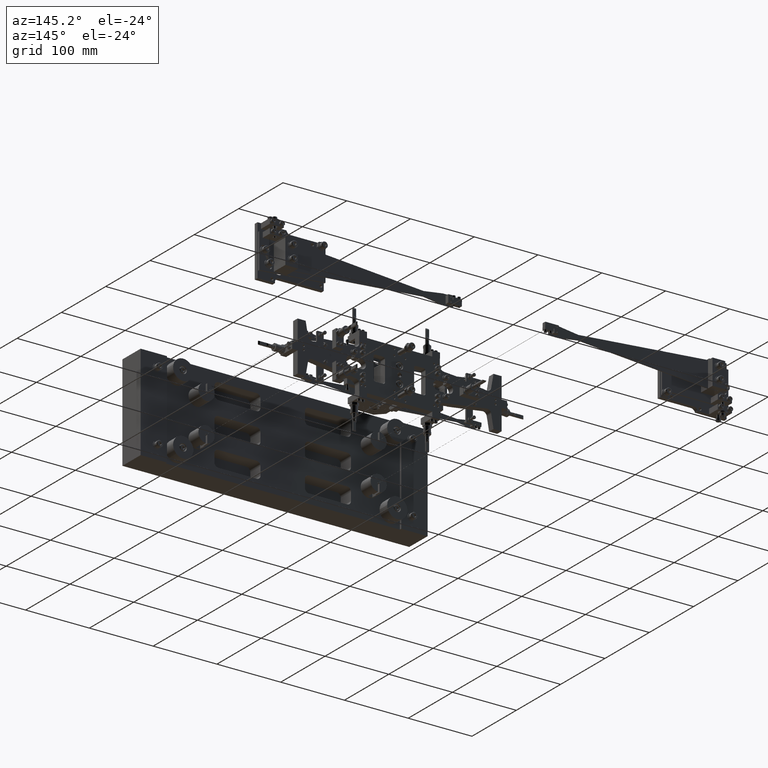
[diagram: clean part render]
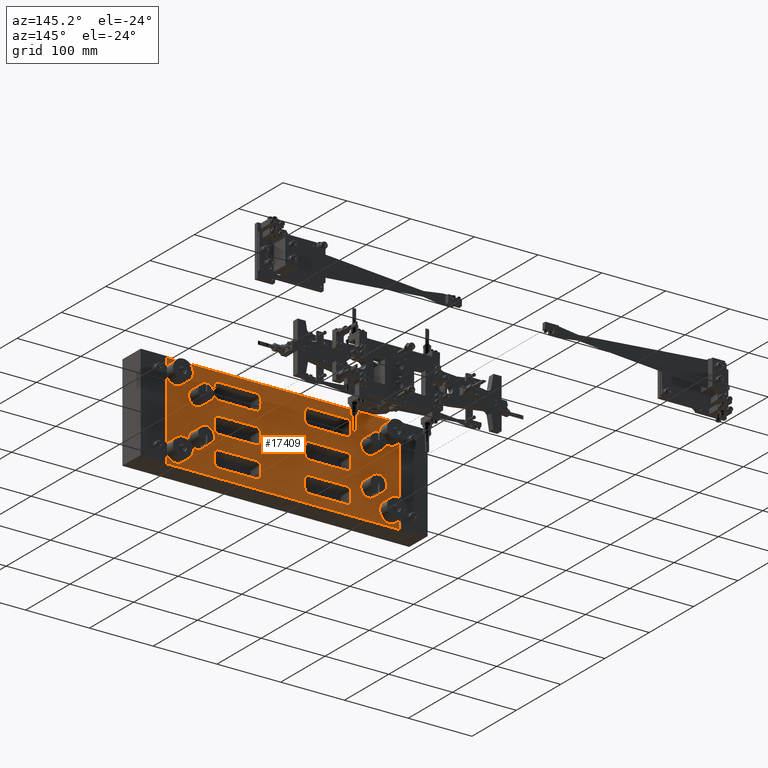
[diagram: same view with one face highlighted and labeled with its STEP entity id]
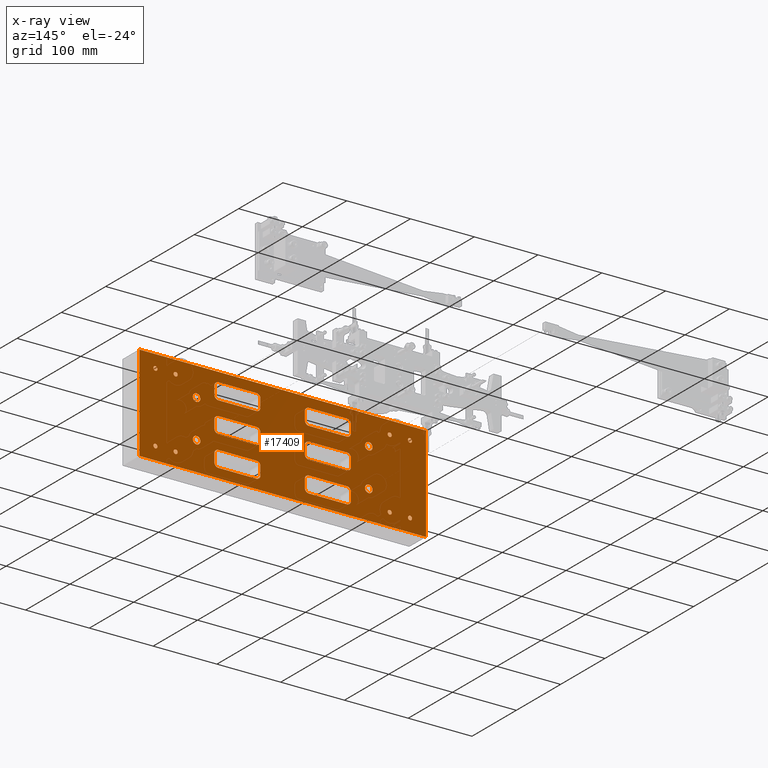
[diagram: x-ray of the same camera — body ghosted, the highlighted face saturated]
A machine part, auxiliary view. The second image highlights one B-rep face of the part: STEP entity #17409.
The next image is the same camera in x-ray: the body ghosted, the highlighted face saturated — about 1% of this face is hidden behind the body in this view.
In plain terms, the highlighted planar face has unit normal (-0, -1, 0).
Its self-contained STEP definition (entity closure, byte-faithful):
#141 = DIRECTION ( 'NONE',  ( 0.0000000000000000000, 0.0000000000000000000, -1.000000000000000000 ) ) ;
#145 = DIRECTION ( 'NONE',  ( 0.0000000000000000000, 0.0000000000000000000, -1.000000000000000000 ) ) ;
#350 = EDGE_LOOP ( 'NONE', ( #25212, #18668 ) ) ;
#534 = VERTEX_POINT ( 'NONE', #21605 ) ;
#553 = VERTEX_POINT ( 'NONE', #36937 ) ;
#792 = VECTOR ( 'NONE', #12968, 39.37007874015748100 ) ;
#840 = CARTESIAN_POINT ( 'NONE',  ( 2.376786042144231300, 0.7500000000000026600, 3.966870510997008400 ) ) ;
#875 = DIRECTION ( 'NONE',  ( 5.551115123125790100E-017, 0.0000000000000000000, 1.000000000000000000 ) ) ;
#1017 = VERTEX_POINT ( 'NONE', #19988 ) ;
#1393 = CARTESIAN_POINT ( 'NONE',  ( 1.376786042144228400, 0.7499999999999983300, 3.966870510997009300 ) ) ;
#1468 = CARTESIAN_POINT ( 'NONE',  ( 2.376786042144231700, 0.7500000000000026600, 3.336609674726440700 ) ) ;
#1554 = AXIS2_PLACEMENT_3D ( 'NONE', #62540, #31784, #875 ) ;
#1714 = EDGE_CURVE ( 'NONE', #57868, #10222, #48602, .T. ) ;
#1972 = CARTESIAN_POINT ( 'NONE',  ( 2.151929547693747200, 0.7500000000000004400, 6.608267716535444000 ) ) ;
#2077 = VERTEX_POINT ( 'NONE', #32365 ) ;
#2202 = VERTEX_POINT ( 'NONE', #53929 ) ;
#2470 = DIRECTION ( 'NONE',  ( 0.0000000000000000000, 0.0000000000000000000, -1.000000000000000000 ) ) ;
#2582 = ORIENTED_EDGE ( 'NONE', *, *, #35487, .T. ) ;
#2757 = CARTESIAN_POINT ( 'NONE',  ( 0.2499999999999999200, 0.7500000000000004400, -3.966870510997006600 ) ) ;
#2825 = AXIS2_PLACEMENT_3D ( 'NONE', #34095, #3170, #39220 ) ;
#2833 = ORIENTED_EDGE ( 'NONE', *, *, #54879, .T. ) ;
#2924 = CARTESIAN_POINT ( 'NONE',  ( 0.2500000000000002200, 0.7499999999999983300, 1.618105737718565700 ) ) ;
#2938 = CARTESIAN_POINT ( 'NONE',  ( -0.2500000000000010000, 0.7499999999999983300, 3.966870510997009300 ) ) ;
#3170 = DIRECTION ( 'NONE',  ( -5.551115123125822100E-017, -1.000000000000000000, -2.220446049250312300E-016 ) ) ;
#3448 = CIRCLE ( 'NONE', #26038, 0.2500000000000006100 ) ;
#3472 = CARTESIAN_POINT ( 'NONE',  ( -2.126786042144232200, 0.7499999999999961100, 1.368105737718564100 ) ) ;
#3507 = CARTESIAN_POINT ( 'NONE',  ( -1.626786042144229100, 0.7500000000000048800, -4.216870510997006600 ) ) ;
#3805 = AXIS2_PLACEMENT_3D ( 'NONE', #24036, #60072, #29276 ) ;
#4048 = EDGE_CURVE ( 'NONE', #5049, #52435, #33201, .T. ) ;
#4131 = EDGE_LOOP ( 'NONE', ( #36087, #48756 ) ) ;
#4226 = CIRCLE ( 'NONE', #19633, 0.2500000000000006100 ) ;
#4335 = EDGE_CURVE ( 'NONE', #48378, #25298, #6486, .T. ) ;
#4388 = EDGE_CURVE ( 'NONE', #30220, #36226, #17004, .T. ) ;
#4479 = CARTESIAN_POINT ( 'NONE',  ( -1.626786042144228400, 0.7500000000000048800, -3.966870510997007000 ) ) ;
#4576 = VERTEX_POINT ( 'NONE', #24170 ) ;
#4700 = AXIS2_PLACEMENT_3D ( 'NONE', #7415, #43457, #12636 ) ;
#4824 = DIRECTION ( 'NONE',  ( -5.551115123125822100E-017, -1.000000000000000000, -2.220446049250312300E-016 ) ) ;
#4889 = CARTESIAN_POINT ( 'NONE',  ( 1.626786042144229300, 0.7500000000000004400, 1.618105737718565000 ) ) ;
#5049 = VERTEX_POINT ( 'NONE', #30254 ) ;
#5064 = VERTEX_POINT ( 'NONE', #66194 ) ;
#5170 = ORIENTED_EDGE ( 'NONE', *, *, #36222, .F. ) ;
#5454 = ORIENTED_EDGE ( 'NONE', *, *, #4388, .T. ) ;
#5769 = AXIS2_PLACEMENT_3D ( 'NONE', #49528, #18676, #54683 ) ;
#5881 = ORIENTED_EDGE ( 'NONE', *, *, #11898, .T. ) ;
#6036 = EDGE_CURVE ( 'NONE', #23474, #17986, #64835, .T. ) ;
#6204 = VERTEX_POINT ( 'NONE', #38155 ) ;
#6316 = DIRECTION ( 'NONE',  ( -5.551115123125822100E-017, -1.000000000000000000, -2.220446049250312300E-016 ) ) ;
#6486 = CIRCLE ( 'NONE', #16391, 0.2342519685039374500 ) ;
#6564 = CIRCLE ( 'NONE', #7645, 0.2500000000000006100 ) ;
#6622 = DIRECTION ( 'NONE',  ( -2.775557561562885900E-016, 2.220446049250309100E-016, 1.000000000000000000 ) ) ;
#6735 = CIRCLE ( 'NONE', #45371, 0.2500000000000006100 ) ;
#6784 = VERTEX_POINT ( 'NONE', #11992 ) ;
#6820 = EDGE_CURVE ( 'NONE', #18119, #23388, #6735, .T. ) ;
#6821 = DIRECTION ( 'NONE',  ( 1.000000000000000000, 5.551115123125812300E-017, 5.551115123125792600E-017 ) ) ;
#7015 = ORIENTED_EDGE ( 'NONE', *, *, #64444, .F. ) ;
#7115 = DIRECTION ( 'NONE',  ( 0.0000000000000000000, 0.0000000000000000000, 1.000000000000000000 ) ) ;
#7308 = ORIENTED_EDGE ( 'NONE', *, *, #46079, .T. ) ;
#7415 = CARTESIAN_POINT ( 'NONE',  ( -2.126786042144232200, 0.7500000000000004400, 1.618105737718565000 ) ) ;
#7488 = CARTESIAN_POINT ( 'NONE',  ( 1.626786042144228400, 0.7499999999999961100, 4.216870510997008400 ) ) ;
#7564 = VERTEX_POINT ( 'NONE', #37996 ) ;
#7576 = CARTESIAN_POINT ( 'NONE',  ( -2.151929547693748100, 0.7500000000000004400, -6.608267716535446600 ) ) ;
#7645 = AXIS2_PLACEMENT_3D ( 'NONE', #60906, #30127, #66069 ) ;
#7925 = DIRECTION ( 'NONE',  ( -1.000000000000000000, -3.944304526105052000E-031, -5.551115123125776800E-016 ) ) ;
#7927 = DIRECTION ( 'NONE',  ( 0.0000000000000000000, 0.0000000000000000000, -1.000000000000000000 ) ) ;
#8068 = ORIENTED_EDGE ( 'NONE', *, *, #28580, .T. ) ;
#8090 = DIRECTION ( 'NONE',  ( 0.0000000000000000000, 0.0000000000000000000, -1.000000000000000000 ) ) ;
#8106 = DIRECTION ( 'NONE',  ( 0.0000000000000000000, 0.0000000000000000000, -1.000000000000000000 ) ) ;
#8142 = VERTEX_POINT ( 'NONE', #26400 ) ;
#8298 = VECTOR ( 'NONE', #8562, 39.37007874015748100 ) ;
#8361 = VECTOR ( 'NONE', #46234, 39.37007874015748100 ) ;
#8542 = FACE_BOUND ( 'NONE', #40590, .T. ) ;
#8549 = ORIENTED_EDGE ( 'NONE', *, *, #19571, .T. ) ;
#8562 = DIRECTION ( 'NONE',  ( -3.885780586188040500E-016, 2.220446049250310400E-016, 1.000000000000000000 ) ) ;
#8676 = CIRCLE ( 'NONE', #43874, 0.2342519685039374500 ) ;
#8701 = EDGE_CURVE ( 'NONE', #17659, #45682, #52527, .T. ) ;
#8996 = DIRECTION ( 'NONE',  ( 1.000000000000000000, 5.551115123125812300E-017, 5.551115123125792600E-017 ) ) ;
#9117 = ORIENTED_EDGE ( 'NONE', *, *, #48170, .T. ) ;
#9243 = CARTESIAN_POINT ( 'NONE',  ( -2.126786042144230800, 0.7499999999999983300, -4.216870510997006600 ) ) ;
#9291 = EDGE_CURVE ( 'NONE', #48440, #19789, #26674, .T. ) ;
#9377 = VERTEX_POINT ( 'NONE', #23798 ) ;
#9656 = DIRECTION ( 'NONE',  ( -1.000000000000000000, -5.551115123125812300E-017, -5.551115123125792600E-017 ) ) ;
#9659 = DIRECTION ( 'NONE',  ( 0.0000000000000000000, 0.0000000000000000000, -1.000000000000000000 ) ) ;
#9660 = LINE ( 'NONE', #12359, #35484 ) ;
#9725 = DIRECTION ( 'NONE',  ( 1.000000000000000000, 3.944304526105052000E-031, 5.551115123125776800E-016 ) ) ;
#10055 = VECTOR ( 'NONE', #6622, 39.37007874015748100 ) ;
#10102 = DIRECTION ( 'NONE',  ( 0.0000000000000000000, 0.0000000000000000000, -1.000000000000000000 ) ) ;
#10150 = AXIS2_PLACEMENT_3D ( 'NONE', #58073, #27239, #63228 ) ;
#10167 = FACE_BOUND ( 'NONE', #58096, .T. ) ;
#10222 = VERTEX_POINT ( 'NONE', #18174 ) ;
#10665 = LINE ( 'NONE', #32343, #33279 ) ;
#10819 = CARTESIAN_POINT ( 'NONE',  ( -2.376786042144231700, 0.7499999999999961100, -1.368105737718564100 ) ) ;
#11002 = DIRECTION ( 'NONE',  ( -5.551115123125822100E-017, -1.000000000000000000, -2.220446049250312300E-016 ) ) ;
#11354 = EDGE_CURVE ( 'NONE', #32983, #31266, #18416, .T. ) ;
#11379 = EDGE_CURVE ( 'NONE', #44428, #13352, #54650, .T. ) ;
#11563 = VERTEX_POINT ( 'NONE', #33999 ) ;
#11595 = CARTESIAN_POINT ( 'NONE',  ( -9.705473735494732100E-031, 0.7499999999999983300, 6.296363255797394800E-016 ) ) ;
#11657 = CARTESIAN_POINT ( 'NONE',  ( 2.151929547693746800, 0.7500000000000069900, 7.858267716535452900 ) ) ;
#11782 = CIRCLE ( 'NONE', #41192, 0.1250000000000004400 ) ;
#11804 = FACE_BOUND ( 'NONE', #33158, .T. ) ;
#11898 = EDGE_CURVE ( 'NONE', #41813, #52702, #35311, .T. ) ;
#11992 = CARTESIAN_POINT ( 'NONE',  ( 1.181102362204726100, 0.7499999999999938900, -5.549212598425209600 ) ) ;
#12167 = CARTESIAN_POINT ( 'NONE',  ( -1.376786042144228600, 0.7500000000000004400, -3.966870510997007000 ) ) ;
#12359 = CARTESIAN_POINT ( 'NONE',  ( -2.376786042144230400, 0.7500000000000004400, 3.336609674726442900 ) ) ;
#12411 = LINE ( 'NONE', #21898, #26088 ) ;
#12446 = DIRECTION ( 'NONE',  ( -5.551115123125822100E-017, -1.000000000000000000, -2.220446049250312300E-016 ) ) ;
#12567 = VERTEX_POINT ( 'NONE', #33968 ) ;
#12636 = DIRECTION ( 'NONE',  ( 0.0000000000000000000, 0.0000000000000000000, -1.000000000000000000 ) ) ;
#12793 = DIRECTION ( 'NONE',  ( 0.0000000000000000000, 0.0000000000000000000, 1.000000000000000000 ) ) ;
#12819 = ORIENTED_EDGE ( 'NONE', *, *, #39395, .F. ) ;
#12851 = CARTESIAN_POINT ( 'NONE',  ( -2.151929547693747700, 0.7500000000000004400, 7.858267716535447500 ) ) ;
#12906 = EDGE_LOOP ( 'NONE', ( #44661, #27108, #50836, #47430, #48134, #14142, #8549, #9117 ) ) ;
#12968 = DIRECTION ( 'NONE',  ( 5.551115123125776800E-016, 2.775557561562886900E-016, 1.000000000000000000 ) ) ;
#13018 = DIRECTION ( 'NONE',  ( -5.551115123125822100E-017, -1.000000000000000000, -2.220446049250312300E-016 ) ) ;
#13178 = EDGE_CURVE ( 'NONE', #534, #49007, #28728, .T. ) ;
#13257 = ORIENTED_EDGE ( 'NONE', *, *, #42812, .T. ) ;
#13259 = CIRCLE ( 'NONE', #33380, 0.2342519685039374500 ) ;
#13352 = VERTEX_POINT ( 'NONE', #49154 ) ;
#13353 = VERTEX_POINT ( 'NONE', #18321 ) ;
#13432 = FACE_BOUND ( 'NONE', #17601, .T. ) ;
#13907 = VERTEX_POINT ( 'NONE', #12167 ) ;
#14016 = VECTOR ( 'NONE', #27007, 39.37007874015748100 ) ;
#14142 = ORIENTED_EDGE ( 'NONE', *, *, #33729, .T. ) ;
#14296 = CIRCLE ( 'NONE', #52597, 0.2342519685039374500 ) ;
#14535 = LINE ( 'NONE', #48995, #792 ) ;
#14567 = EDGE_CURVE ( 'NONE', #38549, #52318, #62003, .T. ) ;
#14783 = CARTESIAN_POINT ( 'NONE',  ( 1.181102362204726800, 0.7499999999999938900, -5.314960629921272600 ) ) ;
#15057 = FACE_BOUND ( 'NONE', #47642, .T. ) ;
#15239 = DIRECTION ( 'NONE',  ( -5.551115123125822100E-017, -1.000000000000000000, -2.220446049250312300E-016 ) ) ;
#15415 = CARTESIAN_POINT ( 'NONE',  ( -2.952755905511816400, 0.7499999999999961100, -8.858267716535454600 ) ) ;
#15441 = ORIENTED_EDGE ( 'NONE', *, *, #62102, .T. ) ;
#15483 = ORIENTED_EDGE ( 'NONE', *, *, #40085, .T. ) ;
#15736 = DIRECTION ( 'NONE',  ( -1.000000000000000000, -5.551115123125812300E-017, -5.551115123125792600E-017 ) ) ;
#16038 = ORIENTED_EDGE ( 'NONE', *, *, #45601, .T. ) ;
#16391 = AXIS2_PLACEMENT_3D ( 'NONE', #17472, #53477, #22617 ) ;
#16652 = CIRCLE ( 'NONE', #34097, 0.2500000000000006100 ) ;
#16698 = ORIENTED_EDGE ( 'NONE', *, *, #46965, .T. ) ;
#16700 = EDGE_LOOP ( 'NONE', ( #59405, #33607, #54242, #27674, #25246, #7308, #8068, #51078 ) ) ;
#16776 = DIRECTION ( 'NONE',  ( 5.551115123125790100E-017, 0.0000000000000000000, 1.000000000000000000 ) ) ;
#16785 = CARTESIAN_POINT ( 'NONE',  ( 1.626786042144229500, 0.7500000000000004400, -1.368105737718564600 ) ) ;
#16841 = DIRECTION ( 'NONE',  ( 0.0000000000000000000, 0.0000000000000000000, 1.000000000000000000 ) ) ;
#16931 = CARTESIAN_POINT ( 'NONE',  ( -2.376786042144230400, 0.7499999999999961100, 3.966870510997009700 ) ) ;
#17004 = CIRCLE ( 'NONE', #30249, 0.1250000000000004400 ) ;
#17060 = CIRCLE ( 'NONE', #34745, 0.2500000000000003300 ) ;
#17107 = CIRCLE ( 'NONE', #37285, 0.1250000000000004400 ) ;
#17266 = CARTESIAN_POINT ( 'NONE',  ( 2.952755905511814700, 0.7500000000000026600, 8.858267716535452900 ) ) ;
#17333 = CARTESIAN_POINT ( 'NONE',  ( 2.151929547693749000, 0.7500000000000004400, -6.483267716535442200 ) ) ;
#17409 = ADVANCED_FACE ( 'NONE', ( #15057, #40790, #42393, #27121, #13432, #66552, #52917, #39185, #25468, #11804, #64938, #51285, #37564, #23868, #10167, #63326, #49670, #35974, #22254, #8542 ), #42322, .F. ) ;
#17472 = CARTESIAN_POINT ( 'NONE',  ( -1.181102362204727000, 0.7499999999999983300, -5.314960629921273500 ) ) ;
#17538 = CARTESIAN_POINT ( 'NONE',  ( 1.181102362204727200, 0.7500000000000004400, 5.080708661417330200 ) ) ;
#17582 = CARTESIAN_POINT ( 'NONE',  ( 2.151929547693747200, 0.7500000000000004400, 6.733267716535443100 ) ) ;
#17601 = EDGE_LOOP ( 'NONE', ( #56259, #42054 ) ) ;
#17609 = CARTESIAN_POINT ( 'NONE',  ( 4.336808689932323100E-019, 0.7499999999999983300, 0.007812500000000638400 ) ) ;
#17627 = ORIENTED_EDGE ( 'NONE', *, *, #6036, .T. ) ;
#17659 = VERTEX_POINT ( 'NONE', #45007 ) ;
#17700 = VECTOR ( 'NONE', #9725, 39.37007874015748100 ) ;
#17752 = DIRECTION ( 'NONE',  ( -5.551115123125822100E-017, -1.000000000000000000, -2.220446049250312300E-016 ) ) ;
#17763 = CIRCLE ( 'NONE', #1554, 0.007812500000000008700 ) ;
#17872 = CARTESIAN_POINT ( 'NONE',  ( 2.952755905511814700, 0.7499999999999983300, -8.858267716535452900 ) ) ;
#17898 = EDGE_CURVE ( 'NONE', #33870, #48993, #56049, .T. ) ;
#17977 = ORIENTED_EDGE ( 'NONE', *, *, #24998, .T. ) ;
#17986 = VERTEX_POINT ( 'NONE', #840 ) ;
#18010 = LINE ( 'NONE', #19654, #59108 ) ;
#18028 = DIRECTION ( 'NONE',  ( 0.0000000000000000000, 0.0000000000000000000, -1.000000000000000000 ) ) ;
#18052 = VERTEX_POINT ( 'NONE', #47682 ) ;
#18119 = VERTEX_POINT ( 'NONE', #54434 ) ;
#18174 = CARTESIAN_POINT ( 'NONE',  ( -0.5000000000000012200, 0.7500000000000026600, 1.618105737718564600 ) ) ;
#18321 = CARTESIAN_POINT ( 'NONE',  ( 0.5000000000000004400, 0.7499999999999961100, -1.618105737718564600 ) ) ;
#18374 = CARTESIAN_POINT ( 'NONE',  ( 1.626786042144229500, 0.7499999999999961100, -1.618105737718564800 ) ) ;
#18383 = CARTESIAN_POINT ( 'NONE',  ( -2.376786042144232200, 0.7500000000000004400, 1.618105737718564600 ) ) ;
#18385 = EDGE_CURVE ( 'NONE', #52318, #38549, #30270, .T. ) ;
#18416 = CIRCLE ( 'NONE', #10150, 0.2500000000000006100 ) ;
#18596 = CARTESIAN_POINT ( 'NONE',  ( -2.151929547693748600, 0.7499999999999938900, -7.858267716535455500 ) ) ;
#18668 = ORIENTED_EDGE ( 'NONE', *, *, #56725, .T. ) ;
#18673 = VECTOR ( 'NONE', #8996, 39.37007874015748100 ) ;
#18676 = DIRECTION ( 'NONE',  ( -5.551115123125822100E-017, -1.000000000000000000, -2.220446049250312300E-016 ) ) ;
#18751 = CARTESIAN_POINT ( 'NONE',  ( -1.626786042144229300, 0.7499999999999983300, 1.368105737718565300 ) ) ;
#19023 = DIRECTION ( 'NONE',  ( 5.551115123125822100E-017, 1.000000000000000000, 2.220446049250312300E-016 ) ) ;
#19177 = CIRCLE ( 'NONE', #54240, 0.1250000000000004400 ) ;
#19292 = ORIENTED_EDGE ( 'NONE', *, *, #8701, .T. ) ;
#19539 = AXIS2_PLACEMENT_3D ( 'NONE', #61793, #31043, #145 ) ;
#19543 = DIRECTION ( 'NONE',  ( 5.551115123125822100E-017, 1.000000000000000000, 2.220446049250312300E-016 ) ) ;
#19571 = EDGE_CURVE ( 'NONE', #52728, #48010, #18010, .T. ) ;
#19602 = ORIENTED_EDGE ( 'NONE', *, *, #64532, .T. ) ;
#19613 = CIRCLE ( 'NONE', #56023, 0.1250000000000004400 ) ;
#19633 = AXIS2_PLACEMENT_3D ( 'NONE', #4889, #40941, #10102 ) ;
#19654 = CARTESIAN_POINT ( 'NONE',  ( 1.376786042144227300, 0.7499999999999983300, -3.336609674726439300 ) ) ;
#19760 = CARTESIAN_POINT ( 'NONE',  ( -2.151929547693747700, 0.7499999999999961100, 6.483267716535438700 ) ) ;
#19789 = VERTEX_POINT ( 'NONE', #16931 ) ;
#19927 = DIRECTION ( 'NONE',  ( 0.0000000000000000000, 0.0000000000000000000, 1.000000000000000000 ) ) ;
#19960 = EDGE_CURVE ( 'NONE', #13353, #8142, #3448, .T. ) ;
#19988 = CARTESIAN_POINT ( 'NONE',  ( -2.151929547693748600, 0.7499999999999938900, -7.733267716535455500 ) ) ;
#20021 = DIRECTION ( 'NONE',  ( 5.551115123125822100E-017, 1.000000000000000000, 2.220446049250312300E-016 ) ) ;
#20028 = ORIENTED_EDGE ( 'NONE', *, *, #44396, .T. ) ;
#20228 = EDGE_CURVE ( 'NONE', #45944, #29469, #31675, .T. ) ;
#20467 = LINE ( 'NONE', #15415, #8361 ) ;
#20551 = EDGE_CURVE ( 'NONE', #23510, #2202, #17107, .T. ) ;
#20768 = VECTOR ( 'NONE', #65442, 39.37007874015748100 ) ;
#20793 = VERTEX_POINT ( 'NONE', #34208 ) ;
#20916 = DIRECTION ( 'NONE',  ( -5.551115123125822100E-017, -1.000000000000000000, -2.220446049250312300E-016 ) ) ;
#21067 = ORIENTED_EDGE ( 'NONE', *, *, #14567, .T. ) ;
#21097 = AXIS2_PLACEMENT_3D ( 'NONE', #61788, #31037, #141 ) ;
#21188 = CARTESIAN_POINT ( 'NONE',  ( -0.5000000000000004400, 0.7500000000000026600, -1.368105737718564800 ) ) ;
#21259 = VECTOR ( 'NONE', #47598, 39.37007874015748100 ) ;
#21419 = VERTEX_POINT ( 'NONE', #7488 ) ;
#21469 = VECTOR ( 'NONE', #48103, 39.37007874015748100 ) ;
#21605 = CARTESIAN_POINT ( 'NONE',  ( 2.151929547693749000, 0.7500000000000004400, -6.733267716535442200 ) ) ;
#21801 = CARTESIAN_POINT ( 'NONE',  ( -0.5000000000000020000, 0.7500000000000004400, -4.216870510997005700 ) ) ;
#21856 = DIRECTION ( 'NONE',  ( -5.551115123125790100E-017, -2.220446049250310400E-016, -1.000000000000000000 ) ) ;
#21857 = EDGE_LOOP ( 'NONE', ( #21067, #38249 ) ) ;
#21870 = DIRECTION ( 'NONE',  ( -5.551115123125822100E-017, -1.000000000000000000, -2.220446049250312300E-016 ) ) ;
#21898 = CARTESIAN_POINT ( 'NONE',  ( -2.376786042144231300, 0.7499999999999961100, 4.216870510997011000 ) ) ;
#21917 = CARTESIAN_POINT ( 'NONE',  ( 0.5000000000000010000, 0.7499999999999983300, -3.336609674726438400 ) ) ;
#22024 = LINE ( 'NONE', #39210, #8298 ) ;
#22102 = LINE ( 'NONE', #61178, #31004 ) ;
#22111 = VERTEX_POINT ( 'NONE', #57788 ) ;
#22254 = FACE_BOUND ( 'NONE', #12906, .T. ) ;
#22339 = VERTEX_POINT ( 'NONE', #34176 ) ;
#22373 = AXIS2_PLACEMENT_3D ( 'NONE', #11595, #47630, #16776 ) ;
#22441 = VERTEX_POINT ( 'NONE', #65614 ) ;
#22587 = CARTESIAN_POINT ( 'NONE',  ( 2.151929547693749000, 0.7500000000000004400, -6.608267716535442200 ) ) ;
#22617 = DIRECTION ( 'NONE',  ( 0.0000000000000000000, 0.0000000000000000000, 1.000000000000000000 ) ) ;
#22991 = CARTESIAN_POINT ( 'NONE',  ( -1.181102362204727200, 0.7499999999999983300, -5.549212598425210500 ) ) ;
#23171 = CARTESIAN_POINT ( 'NONE',  ( 2.376786042144231700, 0.7500000000000004400, -1.618105737718565000 ) ) ;
#23388 = VERTEX_POINT ( 'NONE', #52731 ) ;
#23474 = VERTEX_POINT ( 'NONE', #47990 ) ;
#23510 = VERTEX_POINT ( 'NONE', #17582 ) ;
#23520 = DIRECTION ( 'NONE',  ( 0.0000000000000000000, 0.0000000000000000000, -1.000000000000000000 ) ) ;
#23538 = DIRECTION ( 'NONE',  ( 5.551115123125822100E-017, 1.000000000000000000, 2.220446049250312300E-016 ) ) ;
#23551 = CIRCLE ( 'NONE', #52354, 0.2500000000000003300 ) ;
#23640 = CARTESIAN_POINT ( 'NONE',  ( -2.151929547693748100, 0.7500000000000004400, -6.733267716535445800 ) ) ;
#23759 = DIRECTION ( 'NONE',  ( 0.0000000000000000000, 0.0000000000000000000, 1.000000000000000000 ) ) ;
#23798 = CARTESIAN_POINT ( 'NONE',  ( -2.952755905511816400, 0.7499999999999961100, -8.858267716535454600 ) ) ;
#23855 = DIRECTION ( 'NONE',  ( -3.885780586188044400E-016, -1.665334536937732300E-016, -1.000000000000000000 ) ) ;
#23868 = FACE_BOUND ( 'NONE', #54403, .T. ) ;
#23911 = EDGE_CURVE ( 'NONE', #27867, #9377, #22102, .T. ) ;
#23984 = DIRECTION ( 'NONE',  ( 3.885780586188040500E-016, -2.220446049250310400E-016, -1.000000000000000000 ) ) ;
#24036 = CARTESIAN_POINT ( 'NONE',  ( -2.151929547693747700, 0.7499999999999961100, 6.608267716535438700 ) ) ;
#24064 = ORIENTED_EDGE ( 'NONE', *, *, #41660, .T. ) ;
#24071 = DIRECTION ( 'NONE',  ( -5.551115123125822100E-017, -1.000000000000000000, -2.220446049250312300E-016 ) ) ;
#24170 = CARTESIAN_POINT ( 'NONE',  ( 1.181102362204727200, 0.7500000000000004400, 5.549212598425205200 ) ) ;
#24300 = CARTESIAN_POINT ( 'NONE',  ( -1.376786042144230600, 0.7500000000000026600, 1.618105737718564600 ) ) ;
#24508 = EDGE_CURVE ( 'NONE', #36589, #20793, #44577, .T. ) ;
#24541 = CARTESIAN_POINT ( 'NONE',  ( 2.126786042144231300, 0.7500000000000004400, 3.966870510997010600 ) ) ;
#24630 = ORIENTED_EDGE ( 'NONE', *, *, #56901, .T. ) ;
#24755 = DIRECTION ( 'NONE',  ( -5.551115123125822100E-017, -1.000000000000000000, -2.220446049250312300E-016 ) ) ;
#24807 = ORIENTED_EDGE ( 'NONE', *, *, #25728, .T. ) ;
#24840 = CARTESIAN_POINT ( 'NONE',  ( -1.181102362204727400, 0.7500000000000048800, 5.314960629921264600 ) ) ;
#24899 = VERTEX_POINT ( 'NONE', #17609 ) ;
#24998 = EDGE_CURVE ( 'NONE', #553, #2077, #26825, .T. ) ;
#25045 = ORIENTED_EDGE ( 'NONE', *, *, #62846, .F. ) ;
#25212 = ORIENTED_EDGE ( 'NONE', *, *, #13178, .T. ) ;
#25246 = ORIENTED_EDGE ( 'NONE', *, *, #66165, .T. ) ;
#25298 = VERTEX_POINT ( 'NONE', #35813 ) ;
#25400 = CARTESIAN_POINT ( 'NONE',  ( -1.181102362204727400, 0.7500000000000048800, 5.314960629921264600 ) ) ;
#25432 = VERTEX_POINT ( 'NONE', #62309 ) ;
#25468 = FACE_BOUND ( 'NONE', #49973, .T. ) ;
#25541 = EDGE_CURVE ( 'NONE', #22339, #12567, #55079, .T. ) ;
#25696 = ORIENTED_EDGE ( 'NONE', *, *, #20551, .T. ) ;
#25697 = CARTESIAN_POINT ( 'NONE',  ( 2.151929547693748600, 0.7500000000000004400, -7.983267716535452000 ) ) ;
#25728 = EDGE_CURVE ( 'NONE', #18052, #52898, #19613, .T. ) ;
#25776 = CARTESIAN_POINT ( 'NONE',  ( -2.952755905511816900, 0.7500000000000004400, 8.858267716535447500 ) ) ;
#25901 = AXIS2_PLACEMENT_3D ( 'NONE', #46045, #15239, #51252 ) ;
#25954 = ORIENTED_EDGE ( 'NONE', *, *, #25541, .F. ) ;
#26038 = AXIS2_PLACEMENT_3D ( 'NONE', #28422, #64384, #33633 ) ;
#26088 = VECTOR ( 'NONE', #27095, 39.37007874015748100 ) ;
#26119 = CARTESIAN_POINT ( 'NONE',  ( -0.2500000000000005000, 0.7500000000000004400, -1.368105737718565300 ) ) ;
#26216 = AXIS2_PLACEMENT_3D ( 'NONE', #64160, #33406, #2470 ) ;
#26239 = ORIENTED_EDGE ( 'NONE', *, *, #1714, .T. ) ;
#26289 = EDGE_CURVE ( 'NONE', #24899, #43488, #38056, .T. ) ;
#26368 = EDGE_CURVE ( 'NONE', #21419, #11563, #10665, .T. ) ;
#26400 = CARTESIAN_POINT ( 'NONE',  ( 0.2499999999999999200, 0.7500000000000004400, -1.368105737718563700 ) ) ;
#26412 = CIRCLE ( 'NONE', #60728, 0.1250000000000004400 ) ;
#26511 = ORIENTED_EDGE ( 'NONE', *, *, #40567, .F. ) ;
#26629 = DIRECTION ( 'NONE',  ( -5.551115123125822100E-017, -1.000000000000000000, -2.220446049250312300E-016 ) ) ;
#26674 = CIRCLE ( 'NONE', #31709, 0.2500000000000003300 ) ;
#26746 = CARTESIAN_POINT ( 'NONE',  ( 2.151929547693748600, 0.7500000000000004400, -7.858267716535452000 ) ) ;
#26825 = CIRCLE ( 'NONE', #44770, 0.2500000000000006100 ) ;
#27007 = DIRECTION ( 'NONE',  ( -1.000000000000000000, -5.551115123125812300E-017, -5.551115123125792600E-017 ) ) ;
#27058 = VECTOR ( 'NONE', #15736, 39.37007874015748100 ) ;
#27095 = DIRECTION ( 'NONE',  ( 1.000000000000000000, 5.551115123125812300E-017, 5.551115123125792600E-017 ) ) ;
#27108 = ORIENTED_EDGE ( 'NONE', *, *, #63721, .T. ) ;
#27121 = FACE_BOUND ( 'NONE', #63989, .T. ) ;
#27239 = DIRECTION ( 'NONE',  ( -5.551115123125822100E-017, -1.000000000000000000, -2.220446049250312300E-016 ) ) ;
#27261 = EDGE_CURVE ( 'NONE', #43825, #39345, #41980, .T. ) ;
#27269 = CARTESIAN_POINT ( 'NONE',  ( -0.5000000000000010000, 0.7499999999999983300, -1.618105737718565000 ) ) ;
#27447 = DIRECTION ( 'NONE',  ( -5.551115123125822100E-017, -1.000000000000000000, -2.220446049250312300E-016 ) ) ;
#27468 = DIRECTION ( 'NONE',  ( 1.000000000000000000, 3.944304526105052000E-031, -3.885780586188041000E-016 ) ) ;
#27522 = CARTESIAN_POINT ( 'NONE',  ( -0.5000000000000020000, 0.7500000000000004400, -3.966870510997006200 ) ) ;
#27568 = CARTESIAN_POINT ( 'NONE',  ( 1.626786042144228800, 0.7499999999999961100, 1.368105737718564800 ) ) ;
#27674 = ORIENTED_EDGE ( 'NONE', *, *, #27261, .T. ) ;
#27781 = ORIENTED_EDGE ( 'NONE', *, *, #33046, .T. ) ;
#27811 = DIRECTION ( 'NONE',  ( 0.0000000000000000000, 0.0000000000000000000, -1.000000000000000000 ) ) ;
#27867 = VERTEX_POINT ( 'NONE', #32895 ) ;
#27868 = DIRECTION ( 'NONE',  ( -5.551115123125822100E-017, -1.000000000000000000, -2.220446049250312300E-016 ) ) ;
#28085 = ORIENTED_EDGE ( 'NONE', *, *, #38103, .T. ) ;
#28096 = CARTESIAN_POINT ( 'NONE',  ( 2.376786042144230400, 0.7500000000000004400, -3.336609674726440200 ) ) ;
#28283 = DIRECTION ( 'NONE',  ( -5.551115123125822100E-017, -1.000000000000000000, -2.220446049250312300E-016 ) ) ;
#28422 = CARTESIAN_POINT ( 'NONE',  ( 0.2499999999999999200, 0.7499999999999961100, -1.618105737718564600 ) ) ;
#28580 = EDGE_CURVE ( 'NONE', #50883, #5049, #14535, .T. ) ;
#28630 = VECTOR ( 'NONE', #36573, 39.37007874015748100 ) ;
#28728 = CIRCLE ( 'NONE', #48643, 0.1250000000000004400 ) ;
#28824 = LINE ( 'NONE', #21188, #56177 ) ;
#29219 = ORIENTED_EDGE ( 'NONE', *, *, #6820, .T. ) ;
#29276 = DIRECTION ( 'NONE',  ( 0.0000000000000000000, 0.0000000000000000000, -1.000000000000000000 ) ) ;
#29410 = VERTEX_POINT ( 'NONE', #65524 ) ;
#29469 = VERTEX_POINT ( 'NONE', #9243 ) ;
#29777 = DIRECTION ( 'NONE',  ( 0.0000000000000000000, 0.0000000000000000000, -1.000000000000000000 ) ) ;
#29809 = CIRCLE ( 'NONE', #2825, 0.2500000000000006100 ) ;
#29830 = LINE ( 'NONE', #45966, #17700 ) ;
#29939 = CARTESIAN_POINT ( 'NONE',  ( 2.151929547693748600, 0.7500000000000004400, -7.858267716535452000 ) ) ;
#30032 = EDGE_LOOP ( 'NONE', ( #44991, #25696 ) ) ;
#30094 = DIRECTION ( 'NONE',  ( 0.0000000000000000000, 0.0000000000000000000, 1.000000000000000000 ) ) ;
#30127 = DIRECTION ( 'NONE',  ( -5.551115123125822100E-017, -1.000000000000000000, -2.220446049250312300E-016 ) ) ;
#30220 = VERTEX_POINT ( 'NONE', #19760 ) ;
#30249 = AXIS2_PLACEMENT_3D ( 'NONE', #59109, #28283, #64244 ) ;
#30254 = CARTESIAN_POINT ( 'NONE',  ( -1.376786042144228200, 0.7500000000000004400, 3.966870510997008400 ) ) ;
#30270 = CIRCLE ( 'NONE', #55713, 0.1250000000000004400 ) ;
#30383 = EDGE_CURVE ( 'NONE', #10222, #7564, #48177, .T. ) ;
#30651 = DIRECTION ( 'NONE',  ( 0.0000000000000000000, 0.0000000000000000000, 1.000000000000000000 ) ) ;
#30751 = CARTESIAN_POINT ( 'NONE',  ( 1.376786042144228600, 0.7499999999999961100, -3.966870510997006200 ) ) ;
#30837 = EDGE_CURVE ( 'NONE', #6784, #56910, #50571, .T. ) ;
#30953 = CARTESIAN_POINT ( 'NONE',  ( -1.626786042144228400, 0.7500000000000004400, 4.216870510997008400 ) ) ;
#31004 = VECTOR ( 'NONE', #66354, 39.37007874015748100 ) ;
#31037 = DIRECTION ( 'NONE',  ( -5.551115123125822100E-017, -1.000000000000000000, -2.220446049250312300E-016 ) ) ;
#31043 = DIRECTION ( 'NONE',  ( -5.551115123125822100E-017, -1.000000000000000000, -2.220446049250312300E-016 ) ) ;
#31260 = LINE ( 'NONE', #10819, #43287 ) ;
#31266 = VERTEX_POINT ( 'NONE', #64871 ) ;
#31285 = AXIS2_PLACEMENT_3D ( 'NONE', #50894, #20021, #56052 ) ;
#31540 = EDGE_CURVE ( 'NONE', #5064, #46524, #42388, .T. ) ;
#31675 = LINE ( 'NONE', #35366, #45325 ) ;
#31709 = AXIS2_PLACEMENT_3D ( 'NONE', #43850, #13018, #49042 ) ;
#31784 = DIRECTION ( 'NONE',  ( 5.551115123125822100E-017, 1.000000000000000000, 2.220446049250312300E-016 ) ) ;
#31901 = ORIENTED_EDGE ( 'NONE', *, *, #4335, .F. ) ;
#31967 = DIRECTION ( 'NONE',  ( 0.0000000000000000000, 0.0000000000000000000, -1.000000000000000000 ) ) ;
#31998 = AXIS2_PLACEMENT_3D ( 'NONE', #57475, #26629, #62623 ) ;
#32202 = ORIENTED_EDGE ( 'NONE', *, *, #26368, .F. ) ;
#32343 = CARTESIAN_POINT ( 'NONE',  ( 1.376786042144229100, 0.7499999999999961100, 4.216870510997009300 ) ) ;
#32363 = VERTEX_POINT ( 'NONE', #18751 ) ;
#32365 = CARTESIAN_POINT ( 'NONE',  ( 0.5000000000000006700, 0.7500000000000026600, 1.618105737718565700 ) ) ;
#32448 = LINE ( 'NONE', #25776, #58198 ) ;
#32895 = CARTESIAN_POINT ( 'NONE',  ( -2.952755905511816900, 0.7500000000000004400, 8.858267716535447500 ) ) ;
#32983 = VERTEX_POINT ( 'NONE', #23171 ) ;
#33046 = EDGE_CURVE ( 'NONE', #66291, #1017, #65320, .T. ) ;
#33158 = EDGE_LOOP ( 'NONE', ( #27781, #13257 ) ) ;
#33201 = CIRCLE ( 'NONE', #21097, 0.2500000000000003300 ) ;
#33279 = VECTOR ( 'NONE', #6821, 39.37007874015748100 ) ;
#33294 = ORIENTED_EDGE ( 'NONE', *, *, #55185, .T. ) ;
#33320 = CIRCLE ( 'NONE', #39831, 0.2342519685039374500 ) ;
#33380 = AXIS2_PLACEMENT_3D ( 'NONE', #24840, #60868, #30094 ) ;
#33406 = DIRECTION ( 'NONE',  ( -5.551115123125822100E-017, -1.000000000000000000, -2.220446049250312300E-016 ) ) ;
#33607 = ORIENTED_EDGE ( 'NONE', *, *, #9291, .T. ) ;
#33633 = DIRECTION ( 'NONE',  ( 0.0000000000000000000, 0.0000000000000000000, -1.000000000000000000 ) ) ;
#33690 = CARTESIAN_POINT ( 'NONE',  ( 2.376786042144231300, 0.7500000000000048800, -1.368105737718565000 ) ) ;
#33729 = EDGE_CURVE ( 'NONE', #51881, #52728, #49986, .T. ) ;
#33766 = ORIENTED_EDGE ( 'NONE', *, *, #60588, .T. ) ;
#33870 = VERTEX_POINT ( 'NONE', #60662 ) ;
#33892 = CIRCLE ( 'NONE', #53353, 0.1250000000000004400 ) ;
#33968 = CARTESIAN_POINT ( 'NONE',  ( -0.2500000000000010000, 0.7500000000000004400, -4.216870510997005700 ) ) ;
#33999 = CARTESIAN_POINT ( 'NONE',  ( 2.126786042144231300, 0.7500000000000004400, 4.216870510997011000 ) ) ;
#34095 = CARTESIAN_POINT ( 'NONE',  ( -0.2500000000000010000, 0.7499999999999983300, -1.618105737718565000 ) ) ;
#34097 = AXIS2_PLACEMENT_3D ( 'NONE', #37204, #6316, #42357 ) ;
#34176 = CARTESIAN_POINT ( 'NONE',  ( 0.2499999999999999200, 0.7500000000000004400, -4.216870510997006600 ) ) ;
#34208 = CARTESIAN_POINT ( 'NONE',  ( 1.376786042144229100, 0.7500000000000004400, 1.618105737718565500 ) ) ;
#34213 = ORIENTED_EDGE ( 'NONE', *, *, #30383, .T. ) ;
#34496 = EDGE_CURVE ( 'NONE', #35029, #41813, #29809, .T. ) ;
#34745 = AXIS2_PLACEMENT_3D ( 'NONE', #4479, #40510, #9659 ) ;
#34932 = VECTOR ( 'NONE', #55353, 39.37007874015748100 ) ;
#35018 = LINE ( 'NONE', #21917, #21259 ) ;
#35029 = VERTEX_POINT ( 'NONE', #26119 ) ;
#35121 = DIRECTION ( 'NONE',  ( 0.0000000000000000000, 0.0000000000000000000, -1.000000000000000000 ) ) ;
#35311 = LINE ( 'NONE', #54706, #47364 ) ;
#35366 = CARTESIAN_POINT ( 'NONE',  ( -2.376786042144231700, 0.7499999999999983300, -4.216870510997004800 ) ) ;
#35484 = VECTOR ( 'NONE', #53555, 39.37007874015748100 ) ;
#35487 = EDGE_CURVE ( 'NONE', #23388, #36789, #63466, .T. ) ;
#35564 = EDGE_CURVE ( 'NONE', #56910, #6784, #8676, .T. ) ;
#35570 = EDGE_CURVE ( 'NONE', #56409, #47729, #19177, .T. ) ;
#35736 = CARTESIAN_POINT ( 'NONE',  ( 1.626786042144228000, 0.7499999999999938900, 3.966870510997009300 ) ) ;
#35785 = ORIENTED_EDGE ( 'NONE', *, *, #34496, .T. ) ;
#35813 = CARTESIAN_POINT ( 'NONE',  ( -1.181102362204727000, 0.7499999999999983300, -5.080708661417336500 ) ) ;
#35974 = FACE_BOUND ( 'NONE', #46056, .T. ) ;
#36087 = ORIENTED_EDGE ( 'NONE', *, *, #35564, .F. ) ;
#36222 = EDGE_CURVE ( 'NONE', #25298, #48378, #14296, .T. ) ;
#36226 = VERTEX_POINT ( 'NONE', #44662 ) ;
#36513 = DIRECTION ( 'NONE',  ( -1.000000000000000000, -3.944304526105052000E-031, 3.885780586188041000E-016 ) ) ;
#36547 = EDGE_CURVE ( 'NONE', #13352, #23474, #16652, .T. ) ;
#36573 = DIRECTION ( 'NONE',  ( 3.885780586188044400E-016, 1.665334536937732300E-016, 1.000000000000000000 ) ) ;
#36589 = VERTEX_POINT ( 'NONE', #1393 ) ;
#36606 = VERTEX_POINT ( 'NONE', #63066 ) ;
#36789 = VERTEX_POINT ( 'NONE', #49116 ) ;
#36937 = CARTESIAN_POINT ( 'NONE',  ( 0.2499999999999993900, 0.7499999999999983300, 1.368105737718564800 ) ) ;
#37204 = CARTESIAN_POINT ( 'NONE',  ( 2.126786042144231300, 0.7500000000000026600, 1.618105737718564600 ) ) ;
#37285 = AXIS2_PLACEMENT_3D ( 'NONE', #1972, #37976, #7115 ) ;
#37308 = CIRCLE ( 'NONE', #55317, 0.2500000000000003300 ) ;
#37564 = FACE_BOUND ( 'NONE', #44882, .T. ) ;
#37751 = AXIS2_PLACEMENT_3D ( 'NONE', #18374, #54402, #23520 ) ;
#37976 = DIRECTION ( 'NONE',  ( -5.551115123125822100E-017, -1.000000000000000000, -2.220446049250312300E-016 ) ) ;
#37996 = CARTESIAN_POINT ( 'NONE',  ( -0.2500000000000005000, 0.7499999999999983300, 1.368105737718565300 ) ) ;
#38008 = ORIENTED_EDGE ( 'NONE', *, *, #11379, .T. ) ;
#38022 = ORIENTED_EDGE ( 'NONE', *, *, #64541, .F. ) ;
#38056 = CIRCLE ( 'NONE', #22373, 0.007812500000000008700 ) ;
#38103 = EDGE_CURVE ( 'NONE', #17986, #11563, #55162, .T. ) ;
#38155 = CARTESIAN_POINT ( 'NONE',  ( -2.151929547693747700, 0.7500000000000004400, 7.733267716535446600 ) ) ;
#38249 = ORIENTED_EDGE ( 'NONE', *, *, #18385, .T. ) ;
#38549 = VERTEX_POINT ( 'NONE', #43614 ) ;
#38690 = VERTEX_POINT ( 'NONE', #39332 ) ;
#38796 = DIRECTION ( 'NONE',  ( -5.551115123125822100E-017, -1.000000000000000000, -2.220446049250312300E-016 ) ) ;
#38858 = CIRCLE ( 'NONE', #59646, 0.2500000000000003300 ) ;
#38966 = DIRECTION ( 'NONE',  ( -5.551115123125822100E-017, -1.000000000000000000, -2.220446049250312300E-016 ) ) ;
#38980 = DIRECTION ( 'NONE',  ( -5.551115123125822100E-017, -1.000000000000000000, -2.220446049250312300E-016 ) ) ;
#39005 = EDGE_LOOP ( 'NONE', ( #58447, #44405, #25045, #65066 ) ) ;
#39054 = CARTESIAN_POINT ( 'NONE',  ( 2.151929547693748600, 0.7500000000000004400, -7.733267716535451100 ) ) ;
#39185 = FACE_BOUND ( 'NONE', #30032, .T. ) ;
#39210 = CARTESIAN_POINT ( 'NONE',  ( -1.376786042144229100, 0.7500000000000004400, -3.336609674726439300 ) ) ;
#39220 = DIRECTION ( 'NONE',  ( 0.0000000000000000000, 0.0000000000000000000, -1.000000000000000000 ) ) ;
#39229 = ORIENTED_EDGE ( 'NONE', *, *, #58919, .T. ) ;
#39248 = CARTESIAN_POINT ( 'NONE',  ( -5.423770773380586700E-016, 0.7499999999999983300, -0.007812499999999364200 ) ) ;
#39332 = CARTESIAN_POINT ( 'NONE',  ( 2.376786042144230400, 0.7500000000000026600, -3.966870510997007000 ) ) ;
#39345 = VERTEX_POINT ( 'NONE', #3472 ) ;
#39395 = EDGE_CURVE ( 'NONE', #41640, #29410, #13259, .T. ) ;
#39430 = CIRCLE ( 'NONE', #31998, 0.2500000000000003300 ) ;
#39500 = EDGE_LOOP ( 'NONE', ( #2833, #24807 ) ) ;
#39557 = EDGE_CURVE ( 'NONE', #46524, #9377, #20467, .T. ) ;
#39564 = CARTESIAN_POINT ( 'NONE',  ( -2.376786042144233100, 0.7499999999999983300, -3.336609674726438900 ) ) ;
#39753 = EDGE_CURVE ( 'NONE', #48440, #52435, #12411, .T. ) ;
#39813 = CARTESIAN_POINT ( 'NONE',  ( -0.5000000000000010000, 0.7500000000000004400, 3.336609674726442400 ) ) ;
#39831 = AXIS2_PLACEMENT_3D ( 'NONE', #54418, #23538, #59581 ) ;
#40005 = EDGE_CURVE ( 'NONE', #47052, #57868, #52670, .T. ) ;
#40085 = EDGE_CURVE ( 'NONE', #13907, #17659, #22024, .T. ) ;
#40510 = DIRECTION ( 'NONE',  ( -5.551115123125822100E-017, -1.000000000000000000, -2.220446049250312300E-016 ) ) ;
#40567 = EDGE_CURVE ( 'NONE', #64992, #4576, #33320, .T. ) ;
#40590 = EDGE_LOOP ( 'NONE', ( #46029, #19602, #15483, #19292, #24064, #29219, #2582, #33766 ) ) ;
#40768 = VECTOR ( 'NONE', #53730, 39.37007874015748100 ) ;
#40790 = FACE_BOUND ( 'NONE', #55403, .T. ) ;
#40882 = DIRECTION ( 'NONE',  ( 0.0000000000000000000, 0.0000000000000000000, -1.000000000000000000 ) ) ;
#40941 = DIRECTION ( 'NONE',  ( -5.551115123125822100E-017, -1.000000000000000000, -2.220446049250312300E-016 ) ) ;
#41045 = CARTESIAN_POINT ( 'NONE',  ( 0.5000000000000012200, 0.7499999999999983300, 3.336609674726441500 ) ) ;
#41169 = ORIENTED_EDGE ( 'NONE', *, *, #62760, .T. ) ;
#41192 = AXIS2_PLACEMENT_3D ( 'NONE', #18596, #54610, #23759 ) ;
#41281 = AXIS2_PLACEMENT_3D ( 'NONE', #26746, #62740, #31967 ) ;
#41320 = DIRECTION ( 'NONE',  ( -1.000000000000000000, -5.551115123125812300E-017, -5.551115123125792600E-017 ) ) ;
#41640 = VERTEX_POINT ( 'NONE', #51824 ) ;
#41660 = EDGE_CURVE ( 'NONE', #45682, #18119, #31260, .T. ) ;
#41813 = VERTEX_POINT ( 'NONE', #27269 ) ;
#41823 = CARTESIAN_POINT ( 'NONE',  ( 0.2500000000000007200, 0.7499999999999983300, 3.966870510997009300 ) ) ;
#41861 = AXIS2_PLACEMENT_3D ( 'NONE', #2757, #38796, #7927 ) ;
#41980 = CIRCLE ( 'NONE', #4700, 0.2500000000000006100 ) ;
#42054 = ORIENTED_EDGE ( 'NONE', *, *, #54968, .F. ) ;
#42100 = CARTESIAN_POINT ( 'NONE',  ( -2.952755905511816900, 0.7500000000000004400, 8.858267716535447500 ) ) ;
#42262 = LINE ( 'NONE', #41045, #28630 ) ;
#42322 = PLANE ( 'NONE',  #59562 ) ;
#42357 = DIRECTION ( 'NONE',  ( 0.0000000000000000000, 0.0000000000000000000, -1.000000000000000000 ) ) ;
#42375 = LINE ( 'NONE', #28096, #40768 ) ;
#42388 = LINE ( 'NONE', #17266, #21469 ) ;
#42393 = FACE_BOUND ( 'NONE', #4131, .T. ) ;
#42566 = ORIENTED_EDGE ( 'NONE', *, *, #19960, .T. ) ;
#42642 = EDGE_CURVE ( 'NONE', #2202, #23510, #45623, .T. ) ;
#42701 = EDGE_CURVE ( 'NONE', #38690, #32983, #42375, .T. ) ;
#42801 = CIRCLE ( 'NONE', #31285, 0.2342519685039374500 ) ;
#42812 = EDGE_CURVE ( 'NONE', #1017, #66291, #11782, .T. ) ;
#42957 = CARTESIAN_POINT ( 'NONE',  ( 1.626786042144228000, 0.7500000000000004400, -4.216870510997005700 ) ) ;
#43246 = CARTESIAN_POINT ( 'NONE',  ( 1.376786042144229700, 0.7499999999999961100, -1.618105737718565500 ) ) ;
#43268 = CARTESIAN_POINT ( 'NONE',  ( -2.126786042144232600, 0.7499999999999938900, -1.618105737718565000 ) ) ;
#43287 = VECTOR ( 'NONE', #36513, 39.37007874015748100 ) ;
#43352 = ORIENTED_EDGE ( 'NONE', *, *, #50173, .T. ) ;
#43397 = EDGE_CURVE ( 'NONE', #31266, #51881, #52826, .T. ) ;
#43457 = DIRECTION ( 'NONE',  ( -5.551115123125822100E-017, -1.000000000000000000, -2.220446049250312300E-016 ) ) ;
#43488 = VERTEX_POINT ( 'NONE', #39248 ) ;
#43612 = DIRECTION ( 'NONE',  ( -5.551115123125822100E-017, -1.000000000000000000, -2.220446049250312300E-016 ) ) ;
#43614 = CARTESIAN_POINT ( 'NONE',  ( 2.151929547693746800, 0.7500000000000069900, 7.733267716535453800 ) ) ;
#43825 = VERTEX_POINT ( 'NONE', #18383 ) ;
#43850 = CARTESIAN_POINT ( 'NONE',  ( -2.126786042144230800, 0.7499999999999961100, 3.966870510997007500 ) ) ;
#43874 = AXIS2_PLACEMENT_3D ( 'NONE', #50398, #19543, #55559 ) ;
#44396 = EDGE_CURVE ( 'NONE', #22111, #13353, #35018, .T. ) ;
#44405 = ORIENTED_EDGE ( 'NONE', *, *, #23911, .F. ) ;
#44428 = VERTEX_POINT ( 'NONE', #27568 ) ;
#44577 = LINE ( 'NONE', #49679, #47837 ) ;
#44650 = ORIENTED_EDGE ( 'NONE', *, *, #24508, .T. ) ;
#44661 = ORIENTED_EDGE ( 'NONE', *, *, #17898, .F. ) ;
#44662 = CARTESIAN_POINT ( 'NONE',  ( -2.151929547693747700, 0.7499999999999961100, 6.733267716535439500 ) ) ;
#44770 = AXIS2_PLACEMENT_3D ( 'NONE', #2924, #38966, #8090 ) ;
#44882 = EDGE_LOOP ( 'NONE', ( #24630, #33294 ) ) ;
#44991 = ORIENTED_EDGE ( 'NONE', *, *, #42642, .T. ) ;
#45007 = CARTESIAN_POINT ( 'NONE',  ( -1.376786042144229700, 0.7500000000000004400, -1.618105737718565000 ) ) ;
#45098 = ORIENTED_EDGE ( 'NONE', *, *, #59512, .F. ) ;
#45325 = VECTOR ( 'NONE', #9656, 39.37007874015748100 ) ;
#45371 = AXIS2_PLACEMENT_3D ( 'NONE', #43268, #12446, #48466 ) ;
#45601 = EDGE_CURVE ( 'NONE', #47729, #56409, #62191, .T. ) ;
#45623 = CIRCLE ( 'NONE', #63179, 0.1250000000000004400 ) ;
#45682 = VERTEX_POINT ( 'NONE', #58035 ) ;
#45832 = AXIS2_PLACEMENT_3D ( 'NONE', #2938, #38980, #8106 ) ;
#45845 = AXIS2_PLACEMENT_3D ( 'NONE', #54929, #24071, #60107 ) ;
#45851 = AXIS2_PLACEMENT_3D ( 'NONE', #14783, #50790, #19927 ) ;
#45944 = VERTEX_POINT ( 'NONE', #3507 ) ;
#45966 = CARTESIAN_POINT ( 'NONE',  ( -2.376786042144232600, 0.7499999999999961100, 1.368105737718563700 ) ) ;
#46029 = ORIENTED_EDGE ( 'NONE', *, *, #20228, .F. ) ;
#46045 = CARTESIAN_POINT ( 'NONE',  ( -2.126786042144230800, 0.7499999999999983300, -3.966870510997008400 ) ) ;
#46050 = ORIENTED_EDGE ( 'NONE', *, *, #36547, .T. ) ;
#46056 = EDGE_LOOP ( 'NONE', ( #7015, #65779, #26239, #34213, #46254, #17977, #43352, #15441 ) ) ;
#46079 = EDGE_CURVE ( 'NONE', #32363, #50883, #6564, .T. ) ;
#46234 = DIRECTION ( 'NONE',  ( -1.000000000000000000, -5.551115123125812300E-017, -5.551115123125792600E-017 ) ) ;
#46254 = ORIENTED_EDGE ( 'NONE', *, *, #55471, .T. ) ;
#46524 = VERTEX_POINT ( 'NONE', #17872 ) ;
#46683 = LINE ( 'NONE', #60713, #58787 ) ;
#46748 = CIRCLE ( 'NONE', #58085, 0.1250000000000004400 ) ;
#46965 = EDGE_CURVE ( 'NONE', #36226, #30220, #63707, .T. ) ;
#47037 = DIRECTION ( 'NONE',  ( 0.0000000000000000000, 0.0000000000000000000, -1.000000000000000000 ) ) ;
#47052 = VERTEX_POINT ( 'NONE', #55347 ) ;
#47265 = CIRCLE ( 'NONE', #51775, 0.2342519685039374500 ) ;
#47364 = VECTOR ( 'NONE', #23855, 39.37007874015748100 ) ;
#47430 = ORIENTED_EDGE ( 'NONE', *, *, #11354, .T. ) ;
#47598 = DIRECTION ( 'NONE',  ( -2.775557561562885900E-016, 2.220446049250309100E-016, 1.000000000000000000 ) ) ;
#47630 = DIRECTION ( 'NONE',  ( 5.551115123125822100E-017, 1.000000000000000000, 2.220446049250312300E-016 ) ) ;
#47642 = EDGE_LOOP ( 'NONE', ( #38022, #26511 ) ) ;
#47682 = CARTESIAN_POINT ( 'NONE',  ( -2.151929547693748100, 0.7500000000000004400, -6.483267716535446600 ) ) ;
#47694 = DIRECTION ( 'NONE',  ( -5.551115123125822100E-017, -1.000000000000000000, -2.220446049250312300E-016 ) ) ;
#47729 = VERTEX_POINT ( 'NONE', #39054 ) ;
#47837 = VECTOR ( 'NONE', #23984, 39.37007874015748100 ) ;
#47990 = CARTESIAN_POINT ( 'NONE',  ( 2.376786042144231300, 0.7500000000000048800, 1.618105737718565000 ) ) ;
#48010 = VERTEX_POINT ( 'NONE', #30751 ) ;
#48103 = DIRECTION ( 'NONE',  ( -5.551115123125790100E-017, -2.220446049250310400E-016, -1.000000000000000000 ) ) ;
#48134 = ORIENTED_EDGE ( 'NONE', *, *, #43397, .T. ) ;
#48170 = EDGE_CURVE ( 'NONE', #48010, #48993, #39430, .T. ) ;
#48177 = CIRCLE ( 'NONE', #19539, 0.2500000000000006100 ) ;
#48378 = VERTEX_POINT ( 'NONE', #22991 ) ;
#48440 = VERTEX_POINT ( 'NONE', #54086 ) ;
#48466 = DIRECTION ( 'NONE',  ( 0.0000000000000000000, 0.0000000000000000000, -1.000000000000000000 ) ) ;
#48602 = LINE ( 'NONE', #39813, #34932 ) ;
#48614 = CARTESIAN_POINT ( 'NONE',  ( -2.151929547693747700, 0.7500000000000004400, 7.858267716535447500 ) ) ;
#48643 = AXIS2_PLACEMENT_3D ( 'NONE', #22587, #58632, #27811 ) ;
#48756 = ORIENTED_EDGE ( 'NONE', *, *, #30837, .F. ) ;
#48819 = AXIS2_PLACEMENT_3D ( 'NONE', #24541, #60551, #29777 ) ;
#48880 = DIRECTION ( 'NONE',  ( -5.551115123125822100E-017, -1.000000000000000000, -2.220446049250312300E-016 ) ) ;
#48993 = VERTEX_POINT ( 'NONE', #42957 ) ;
#48995 = CARTESIAN_POINT ( 'NONE',  ( -1.376786042144229300, 0.7500000000000026600, 3.336609674726442400 ) ) ;
#49007 = VERTEX_POINT ( 'NONE', #17333 ) ;
#49042 = DIRECTION ( 'NONE',  ( 0.0000000000000000000, 0.0000000000000000000, -1.000000000000000000 ) ) ;
#49116 = CARTESIAN_POINT ( 'NONE',  ( -2.376786042144231700, 0.7499999999999961100, -3.966870510997005700 ) ) ;
#49154 = CARTESIAN_POINT ( 'NONE',  ( 2.126786042144230800, 0.7500000000000026600, 1.368105737718564600 ) ) ;
#49457 = CARTESIAN_POINT ( 'NONE',  ( -0.5000000000000014400, 0.7499999999999983300, 3.966870510997009300 ) ) ;
#49528 = CARTESIAN_POINT ( 'NONE',  ( -2.151929547693748600, 0.7499999999999938900, -7.858267716535455500 ) ) ;
#49670 = FACE_OUTER_BOUND ( 'NONE', #39005, .T. ) ;
#49679 = CARTESIAN_POINT ( 'NONE',  ( 1.376786042144228600, 0.7499999999999983300, 3.336609674726441500 ) ) ;
#49865 = CARTESIAN_POINT ( 'NONE',  ( -1.181102362204727000, 0.7499999999999983300, -5.314960629921273500 ) ) ;
#49973 = EDGE_LOOP ( 'NONE', ( #5454, #16698 ) ) ;
#49986 = CIRCLE ( 'NONE', #37751, 0.2500000000000006100 ) ;
#50173 = EDGE_CURVE ( 'NONE', #2077, #25432, #42262, .T. ) ;
#50221 = CARTESIAN_POINT ( 'NONE',  ( -0.5000000000000011100, 0.7500000000000004400, 4.216870510997009300 ) ) ;
#50398 = CARTESIAN_POINT ( 'NONE',  ( 1.181102362204726800, 0.7499999999999938900, -5.314960629921272600 ) ) ;
#50523 = CARTESIAN_POINT ( 'NONE',  ( 2.151929547693746800, 0.7500000000000069900, 7.983267716535452000 ) ) ;
#50571 = CIRCLE ( 'NONE', #45851, 0.2342519685039374500 ) ;
#50790 = DIRECTION ( 'NONE',  ( 5.551115123125822100E-017, 1.000000000000000000, 2.220446049250312300E-016 ) ) ;
#50836 = ORIENTED_EDGE ( 'NONE', *, *, #42701, .T. ) ;
#50855 = EDGE_CURVE ( 'NONE', #52702, #12567, #55909, .T. ) ;
#50883 = VERTEX_POINT ( 'NONE', #24300 ) ;
#50894 = CARTESIAN_POINT ( 'NONE',  ( 1.181102362204727200, 0.7500000000000004400, 5.314960629921268200 ) ) ;
#51078 = ORIENTED_EDGE ( 'NONE', *, *, #4048, .T. ) ;
#51252 = DIRECTION ( 'NONE',  ( 0.0000000000000000000, 0.0000000000000000000, -1.000000000000000000 ) ) ;
#51285 = FACE_BOUND ( 'NONE', #21857, .T. ) ;
#51495 = AXIS2_PLACEMENT_3D ( 'NONE', #55611, #24755, #60781 ) ;
#51775 = AXIS2_PLACEMENT_3D ( 'NONE', #25400, #61422, #30651 ) ;
#51788 = CARTESIAN_POINT ( 'NONE',  ( -2.151929547693748100, 0.7500000000000004400, -6.608267716535446600 ) ) ;
#51824 = CARTESIAN_POINT ( 'NONE',  ( -1.181102362204727200, 0.7500000000000048800, 5.080708661417327600 ) ) ;
#51881 = VERTEX_POINT ( 'NONE', #16785 ) ;
#52064 = CARTESIAN_POINT ( 'NONE',  ( -2.151929547693748600, 0.7499999999999938900, -7.983267716535454600 ) ) ;
#52074 = DIRECTION ( 'NONE',  ( -1.000000000000000000, -5.551115123125812300E-017, -5.551115123125792600E-017 ) ) ;
#52318 = VERTEX_POINT ( 'NONE', #50523 ) ;
#52354 = AXIS2_PLACEMENT_3D ( 'NONE', #52748, #21870, #57889 ) ;
#52435 = VERTEX_POINT ( 'NONE', #30953 ) ;
#52527 = CIRCLE ( 'NONE', #51495, 0.2500000000000006100 ) ;
#52597 = AXIS2_PLACEMENT_3D ( 'NONE', #49865, #19023, #55047 ) ;
#52670 = CIRCLE ( 'NONE', #45832, 0.2500000000000003300 ) ;
#52702 = VERTEX_POINT ( 'NONE', #27522 ) ;
#52728 = VERTEX_POINT ( 'NONE', #43246 ) ;
#52731 = CARTESIAN_POINT ( 'NONE',  ( -2.376786042144231700, 0.7499999999999938900, -1.618105737718564600 ) ) ;
#52733 = DIRECTION ( 'NONE',  ( -5.551115123125819700E-017, -1.000000000000000000, 2.220446049250310400E-016 ) ) ;
#52748 = CARTESIAN_POINT ( 'NONE',  ( 2.126786042144231300, 0.7500000000000026600, -3.966870510997005700 ) ) ;
#52826 = LINE ( 'NONE', #33690, #64863 ) ;
#52898 = VERTEX_POINT ( 'NONE', #23640 ) ;
#52917 = FACE_BOUND ( 'NONE', #350, .T. ) ;
#53134 = EDGE_CURVE ( 'NONE', #20793, #44428, #4226, .T. ) ;
#53353 = AXIS2_PLACEMENT_3D ( 'NONE', #48614, #17752, #53773 ) ;
#53477 = DIRECTION ( 'NONE',  ( 5.551115123125822100E-017, 1.000000000000000000, 2.220446049250312300E-016 ) ) ;
#53555 = DIRECTION ( 'NONE',  ( -3.330669073875467600E-016, -1.665334536937731900E-016, -1.000000000000000000 ) ) ;
#53730 = DIRECTION ( 'NONE',  ( 3.330669073875467600E-016, 1.665334536937731900E-016, 1.000000000000000000 ) ) ;
#53773 = DIRECTION ( 'NONE',  ( 0.0000000000000000000, 0.0000000000000000000, -1.000000000000000000 ) ) ;
#53852 = AXIS2_PLACEMENT_3D ( 'NONE', #58287, #27447, #63427 ) ;
#53929 = CARTESIAN_POINT ( 'NONE',  ( 2.151929547693747200, 0.7500000000000004400, 6.483267716535444900 ) ) ;
#54086 = CARTESIAN_POINT ( 'NONE',  ( -2.126786042144229500, 0.7499999999999961100, 4.216870510997007500 ) ) ;
#54240 = AXIS2_PLACEMENT_3D ( 'NONE', #29939, #65886, #35121 ) ;
#54242 = ORIENTED_EDGE ( 'NONE', *, *, #55172, .T. ) ;
#54402 = DIRECTION ( 'NONE',  ( -5.551115123125822100E-017, -1.000000000000000000, -2.220446049250312300E-016 ) ) ;
#54403 = EDGE_LOOP ( 'NONE', ( #25954, #65973, #20028, #42566, #39229, #35785, #5881, #58375 ) ) ;
#54418 = CARTESIAN_POINT ( 'NONE',  ( 1.181102362204727200, 0.7500000000000004400, 5.314960629921268200 ) ) ;
#54434 = CARTESIAN_POINT ( 'NONE',  ( -2.126786042144231700, 0.7499999999999983300, -1.368105737718564800 ) ) ;
#54610 = DIRECTION ( 'NONE',  ( -5.551115123125822100E-017, -1.000000000000000000, -2.220446049250312300E-016 ) ) ;
#54650 = LINE ( 'NONE', #63450, #56262 ) ;
#54683 = DIRECTION ( 'NONE',  ( 0.0000000000000000000, 0.0000000000000000000, 1.000000000000000000 ) ) ;
#54706 = CARTESIAN_POINT ( 'NONE',  ( -0.5000000000000014400, 0.7499999999999983300, -3.336609674726439300 ) ) ;
#54879 = EDGE_CURVE ( 'NONE', #52898, #18052, #46748, .T. ) ;
#54929 = CARTESIAN_POINT ( 'NONE',  ( -0.2500000000000010000, 0.7500000000000004400, -3.966870510997006200 ) ) ;
#54968 = EDGE_CURVE ( 'NONE', #43488, #24899, #17763, .T. ) ;
#55047 = DIRECTION ( 'NONE',  ( 0.0000000000000000000, 0.0000000000000000000, 1.000000000000000000 ) ) ;
#55079 = LINE ( 'NONE', #21801, #14016 ) ;
#55159 = CIRCLE ( 'NONE', #41861, 0.2500000000000003300 ) ;
#55162 = CIRCLE ( 'NONE', #48819, 0.2500000000000003300 ) ;
#55172 = EDGE_CURVE ( 'NONE', #19789, #43825, #9660, .T. ) ;
#55185 = EDGE_CURVE ( 'NONE', #22441, #6204, #33892, .T. ) ;
#55317 = AXIS2_PLACEMENT_3D ( 'NONE', #41823, #11002, #47037 ) ;
#55347 = CARTESIAN_POINT ( 'NONE',  ( -0.2500000000000012800, 0.7500000000000004400, 4.216870510997009300 ) ) ;
#55353 = DIRECTION ( 'NONE',  ( 2.775557561562885900E-016, -2.220446049250309100E-016, -1.000000000000000000 ) ) ;
#55403 = EDGE_LOOP ( 'NONE', ( #45098, #12819 ) ) ;
#55471 = EDGE_CURVE ( 'NONE', #7564, #553, #46683, .T. ) ;
#55559 = DIRECTION ( 'NONE',  ( 0.0000000000000000000, 0.0000000000000000000, 1.000000000000000000 ) ) ;
#55611 = CARTESIAN_POINT ( 'NONE',  ( -1.626786042144229500, 0.7499999999999983300, -1.618105737718564600 ) ) ;
#55655 = DIRECTION ( 'NONE',  ( -5.551115123125776800E-016, -2.775557561562886900E-016, -1.000000000000000000 ) ) ;
#55713 = AXIS2_PLACEMENT_3D ( 'NONE', #11657, #47694, #16841 ) ;
#55909 = CIRCLE ( 'NONE', #45845, 0.2500000000000003300 ) ;
#56023 = AXIS2_PLACEMENT_3D ( 'NONE', #7576, #43612, #12793 ) ;
#56049 = LINE ( 'NONE', #62047, #27058 ) ;
#56052 = DIRECTION ( 'NONE',  ( 0.0000000000000000000, 0.0000000000000000000, 1.000000000000000000 ) ) ;
#56177 = VECTOR ( 'NONE', #52074, 39.37007874015748100 ) ;
#56259 = ORIENTED_EDGE ( 'NONE', *, *, #26289, .F. ) ;
#56262 = VECTOR ( 'NONE', #27468, 39.37007874015748100 ) ;
#56409 = VERTEX_POINT ( 'NONE', #25697 ) ;
#56725 = EDGE_CURVE ( 'NONE', #49007, #534, #60268, .T. ) ;
#56901 = EDGE_CURVE ( 'NONE', #6204, #22441, #26412, .T. ) ;
#56910 = VERTEX_POINT ( 'NONE', #59009 ) ;
#56922 = DIRECTION ( 'NONE',  ( 0.0000000000000000000, 0.0000000000000000000, 1.000000000000000000 ) ) ;
#57475 = CARTESIAN_POINT ( 'NONE',  ( 1.626786042144228400, 0.7500000000000004400, -3.966870510997006200 ) ) ;
#57788 = CARTESIAN_POINT ( 'NONE',  ( 0.5000000000000010000, 0.7500000000000004400, -3.966870510997006200 ) ) ;
#57836 = ORIENTED_EDGE ( 'NONE', *, *, #53134, .T. ) ;
#57868 = VERTEX_POINT ( 'NONE', #49457 ) ;
#57889 = DIRECTION ( 'NONE',  ( 0.0000000000000000000, 0.0000000000000000000, -1.000000000000000000 ) ) ;
#58035 = CARTESIAN_POINT ( 'NONE',  ( -1.626786042144229500, 0.7500000000000004400, -1.368105737718563700 ) ) ;
#58073 = CARTESIAN_POINT ( 'NONE',  ( 2.126786042144230800, 0.7500000000000004400, -1.618105737718564800 ) ) ;
#58085 = AXIS2_PLACEMENT_3D ( 'NONE', #51788, #20916, #56922 ) ;
#58096 = EDGE_LOOP ( 'NONE', ( #32202, #41169, #44650, #57836, #38008, #46050, #17627, #28085 ) ) ;
#58198 = VECTOR ( 'NONE', #41320, 39.37007874015748100 ) ;
#58287 = CARTESIAN_POINT ( 'NONE',  ( 2.151929547693746800, 0.7500000000000069900, 7.858267716535452900 ) ) ;
#58375 = ORIENTED_EDGE ( 'NONE', *, *, #50855, .T. ) ;
#58447 = ORIENTED_EDGE ( 'NONE', *, *, #39557, .T. ) ;
#58632 = DIRECTION ( 'NONE',  ( -5.551115123125822100E-017, -1.000000000000000000, -2.220446049250312300E-016 ) ) ;
#58688 = CARTESIAN_POINT ( 'NONE',  ( 2.151929547693747200, 0.7500000000000004400, 6.608267716535444000 ) ) ;
#58787 = VECTOR ( 'NONE', #65874, 39.37007874015748100 ) ;
#58919 = EDGE_CURVE ( 'NONE', #8142, #35029, #28824, .T. ) ;
#59009 = CARTESIAN_POINT ( 'NONE',  ( 1.181102362204726800, 0.7499999999999938900, -5.080708661417334700 ) ) ;
#59108 = VECTOR ( 'NONE', #55655, 39.37007874015748100 ) ;
#59109 = CARTESIAN_POINT ( 'NONE',  ( -2.151929547693747700, 0.7499999999999961100, 6.608267716535438700 ) ) ;
#59374 = EDGE_LOOP ( 'NONE', ( #64004, #16038 ) ) ;
#59405 = ORIENTED_EDGE ( 'NONE', *, *, #39753, .F. ) ;
#59512 = EDGE_CURVE ( 'NONE', #29410, #41640, #47265, .T. ) ;
#59562 = AXIS2_PLACEMENT_3D ( 'NONE', #42100, #52733, #21856 ) ;
#59581 = DIRECTION ( 'NONE',  ( 0.0000000000000000000, 0.0000000000000000000, 1.000000000000000000 ) ) ;
#59646 = AXIS2_PLACEMENT_3D ( 'NONE', #35736, #4824, #40882 ) ;
#59758 = LINE ( 'NONE', #50221, #18673 ) ;
#60072 = DIRECTION ( 'NONE',  ( -5.551115123125822100E-017, -1.000000000000000000, -2.220446049250312300E-016 ) ) ;
#60107 = DIRECTION ( 'NONE',  ( 0.0000000000000000000, 0.0000000000000000000, -1.000000000000000000 ) ) ;
#60268 = CIRCLE ( 'NONE', #26216, 0.1250000000000004400 ) ;
#60551 = DIRECTION ( 'NONE',  ( -5.551115123125822100E-017, -1.000000000000000000, -2.220446049250312300E-016 ) ) ;
#60588 = EDGE_CURVE ( 'NONE', #36789, #29469, #65666, .T. ) ;
#60662 = CARTESIAN_POINT ( 'NONE',  ( 2.126786042144230800, 0.7500000000000026600, -4.216870510997004800 ) ) ;
#60713 = CARTESIAN_POINT ( 'NONE',  ( -0.5000000000000010000, 0.7499999999999983300, 1.368105737718564800 ) ) ;
#60728 = AXIS2_PLACEMENT_3D ( 'NONE', #12851, #48880, #18028 ) ;
#60781 = DIRECTION ( 'NONE',  ( 0.0000000000000000000, 0.0000000000000000000, -1.000000000000000000 ) ) ;
#60868 = DIRECTION ( 'NONE',  ( 5.551115123125822100E-017, 1.000000000000000000, 2.220446049250312300E-016 ) ) ;
#60906 = CARTESIAN_POINT ( 'NONE',  ( -1.626786042144230800, 0.7500000000000048800, 1.618105737718566100 ) ) ;
#61042 = EDGE_CURVE ( 'NONE', #22339, #22111, #55159, .T. ) ;
#61178 = CARTESIAN_POINT ( 'NONE',  ( -2.952755905511816900, 0.7500000000000004400, 8.858267716535447500 ) ) ;
#61422 = DIRECTION ( 'NONE',  ( 5.551115123125822100E-017, 1.000000000000000000, 2.220446049250312300E-016 ) ) ;
#61788 = CARTESIAN_POINT ( 'NONE',  ( -1.626786042144229100, 0.7500000000000004400, 3.966870510997008800 ) ) ;
#61793 = CARTESIAN_POINT ( 'NONE',  ( -0.2500000000000005000, 0.7500000000000048800, 1.618105737718564600 ) ) ;
#62003 = CIRCLE ( 'NONE', #53852, 0.1250000000000004400 ) ;
#62047 = CARTESIAN_POINT ( 'NONE',  ( 1.376786042144228600, 0.7500000000000004400, -4.216870510997005700 ) ) ;
#62102 = EDGE_CURVE ( 'NONE', #25432, #36606, #37308, .T. ) ;
#62191 = CIRCLE ( 'NONE', #41281, 0.1250000000000004400 ) ;
#62309 = CARTESIAN_POINT ( 'NONE',  ( 0.5000000000000012200, 0.7500000000000004400, 3.966870510997009300 ) ) ;
#62540 = CARTESIAN_POINT ( 'NONE',  ( -9.705473735494732100E-031, 0.7499999999999983300, 6.296363255797394800E-016 ) ) ;
#62623 = DIRECTION ( 'NONE',  ( 0.0000000000000000000, 0.0000000000000000000, -1.000000000000000000 ) ) ;
#62740 = DIRECTION ( 'NONE',  ( -5.551115123125822100E-017, -1.000000000000000000, -2.220446049250312300E-016 ) ) ;
#62760 = EDGE_CURVE ( 'NONE', #21419, #36589, #38858, .T. ) ;
#62846 = EDGE_CURVE ( 'NONE', #5064, #27867, #32448, .T. ) ;
#63066 = CARTESIAN_POINT ( 'NONE',  ( 0.2500000000000005000, 0.7500000000000004400, 4.216870510997009300 ) ) ;
#63179 = AXIS2_PLACEMENT_3D ( 'NONE', #58688, #27868, #63839 ) ;
#63228 = DIRECTION ( 'NONE',  ( 0.0000000000000000000, 0.0000000000000000000, -1.000000000000000000 ) ) ;
#63326 = FACE_BOUND ( 'NONE', #16700, .T. ) ;
#63427 = DIRECTION ( 'NONE',  ( 0.0000000000000000000, 0.0000000000000000000, 1.000000000000000000 ) ) ;
#63450 = CARTESIAN_POINT ( 'NONE',  ( 2.376786042144231300, 0.7500000000000004400, 1.368105737718564100 ) ) ;
#63466 = LINE ( 'NONE', #39564, #20768 ) ;
#63707 = CIRCLE ( 'NONE', #3805, 0.1250000000000004400 ) ;
#63721 = EDGE_CURVE ( 'NONE', #33870, #38690, #23551, .T. ) ;
#63839 = DIRECTION ( 'NONE',  ( 0.0000000000000000000, 0.0000000000000000000, 1.000000000000000000 ) ) ;
#63989 = EDGE_LOOP ( 'NONE', ( #5170, #31901 ) ) ;
#64004 = ORIENTED_EDGE ( 'NONE', *, *, #35570, .T. ) ;
#64160 = CARTESIAN_POINT ( 'NONE',  ( 2.151929547693749000, 0.7500000000000004400, -6.608267716535442200 ) ) ;
#64244 = DIRECTION ( 'NONE',  ( 0.0000000000000000000, 0.0000000000000000000, -1.000000000000000000 ) ) ;
#64384 = DIRECTION ( 'NONE',  ( -5.551115123125822100E-017, -1.000000000000000000, -2.220446049250312300E-016 ) ) ;
#64444 = EDGE_CURVE ( 'NONE', #47052, #36606, #59758, .T. ) ;
#64532 = EDGE_CURVE ( 'NONE', #45944, #13907, #17060, .T. ) ;
#64541 = EDGE_CURVE ( 'NONE', #4576, #64992, #42801, .T. ) ;
#64835 = LINE ( 'NONE', #1468, #10055 ) ;
#64863 = VECTOR ( 'NONE', #7925, 39.37007874015748100 ) ;
#64871 = CARTESIAN_POINT ( 'NONE',  ( 2.126786042144231300, 0.7500000000000026600, -1.368105737718564800 ) ) ;
#64938 = FACE_BOUND ( 'NONE', #59374, .T. ) ;
#64992 = VERTEX_POINT ( 'NONE', #17538 ) ;
#65066 = ORIENTED_EDGE ( 'NONE', *, *, #31540, .T. ) ;
#65320 = CIRCLE ( 'NONE', #5769, 0.1250000000000004400 ) ;
#65442 = DIRECTION ( 'NONE',  ( 2.775557561562885900E-016, -2.220446049250309100E-016, -1.000000000000000000 ) ) ;
#65524 = CARTESIAN_POINT ( 'NONE',  ( -1.181102362204727400, 0.7500000000000048800, 5.549212598425202500 ) ) ;
#65614 = CARTESIAN_POINT ( 'NONE',  ( -2.151929547693747700, 0.7500000000000004400, 7.983267716535447500 ) ) ;
#65666 = CIRCLE ( 'NONE', #25901, 0.2500000000000003300 ) ;
#65779 = ORIENTED_EDGE ( 'NONE', *, *, #40005, .T. ) ;
#65874 = DIRECTION ( 'NONE',  ( 1.000000000000000000, 5.551115123125812300E-017, 5.551115123125792600E-017 ) ) ;
#65886 = DIRECTION ( 'NONE',  ( -5.551115123125822100E-017, -1.000000000000000000, -2.220446049250312300E-016 ) ) ;
#65973 = ORIENTED_EDGE ( 'NONE', *, *, #61042, .T. ) ;
#66069 = DIRECTION ( 'NONE',  ( 0.0000000000000000000, 0.0000000000000000000, -1.000000000000000000 ) ) ;
#66165 = EDGE_CURVE ( 'NONE', #39345, #32363, #29830, .T. ) ;
#66194 = CARTESIAN_POINT ( 'NONE',  ( 2.952755905511814700, 0.7500000000000026600, 8.858267716535452900 ) ) ;
#66291 = VERTEX_POINT ( 'NONE', #52064 ) ;
#66354 = DIRECTION ( 'NONE',  ( -5.551115123125790100E-017, -2.220446049250310400E-016, -1.000000000000000000 ) ) ;
#66552 = FACE_BOUND ( 'NONE', #39500, .T. ) ;